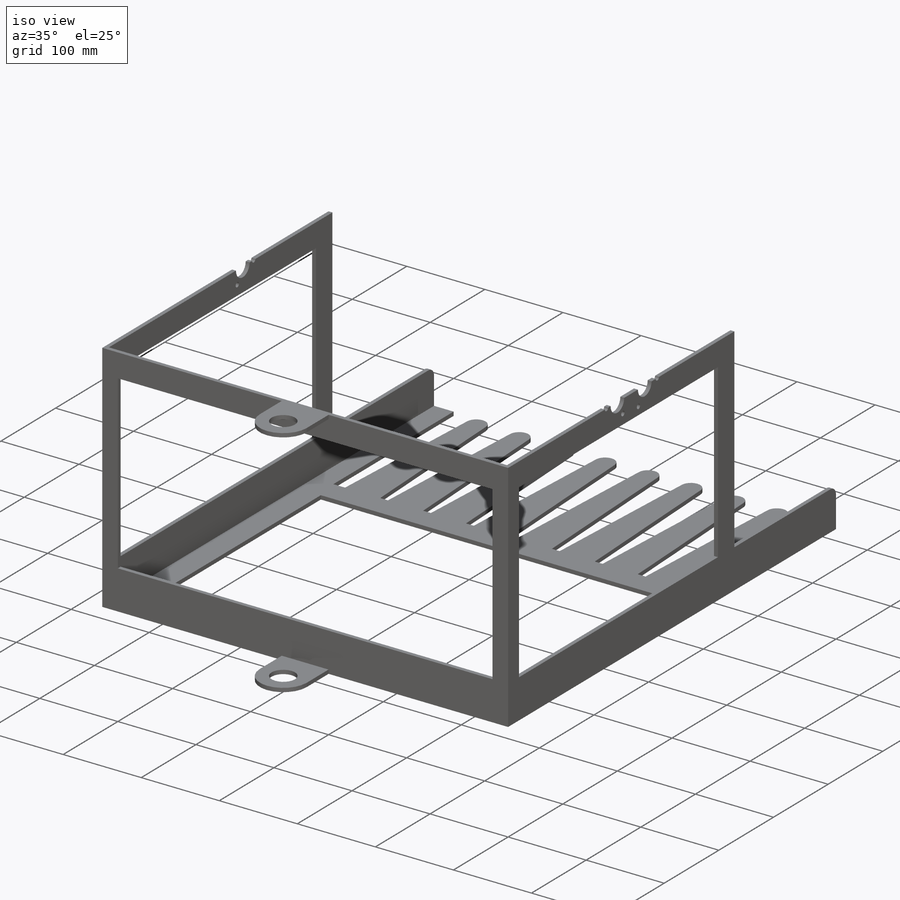
[diagram: iso view]
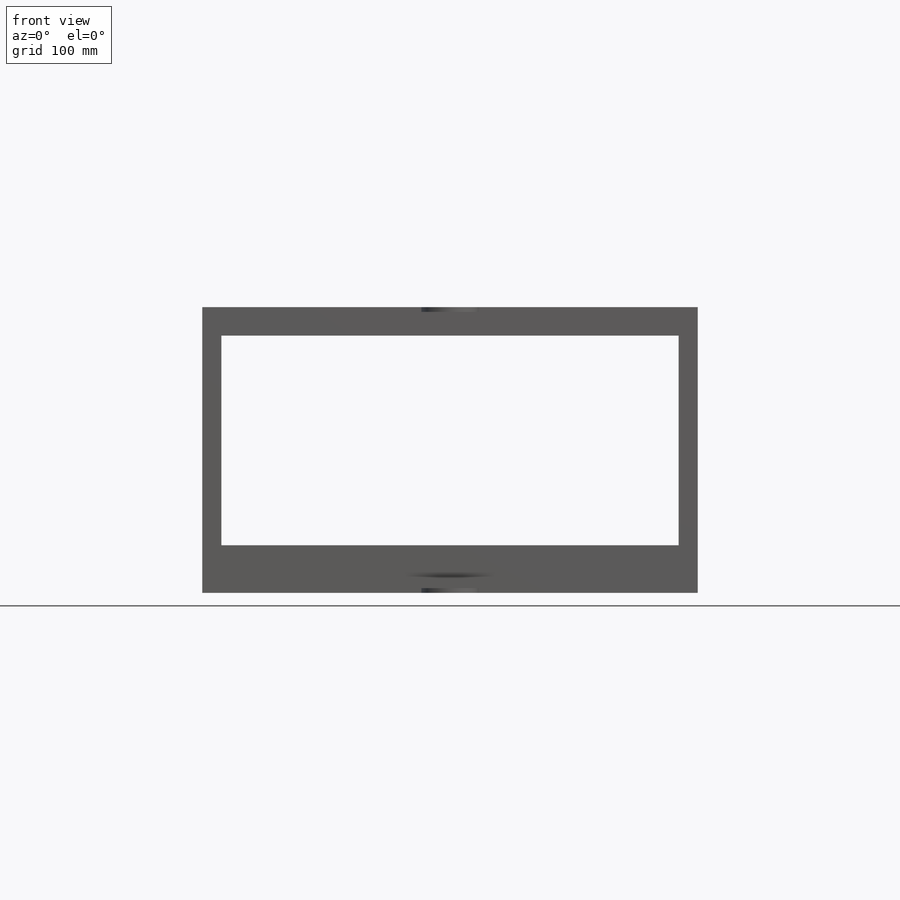
[diagram: front view]
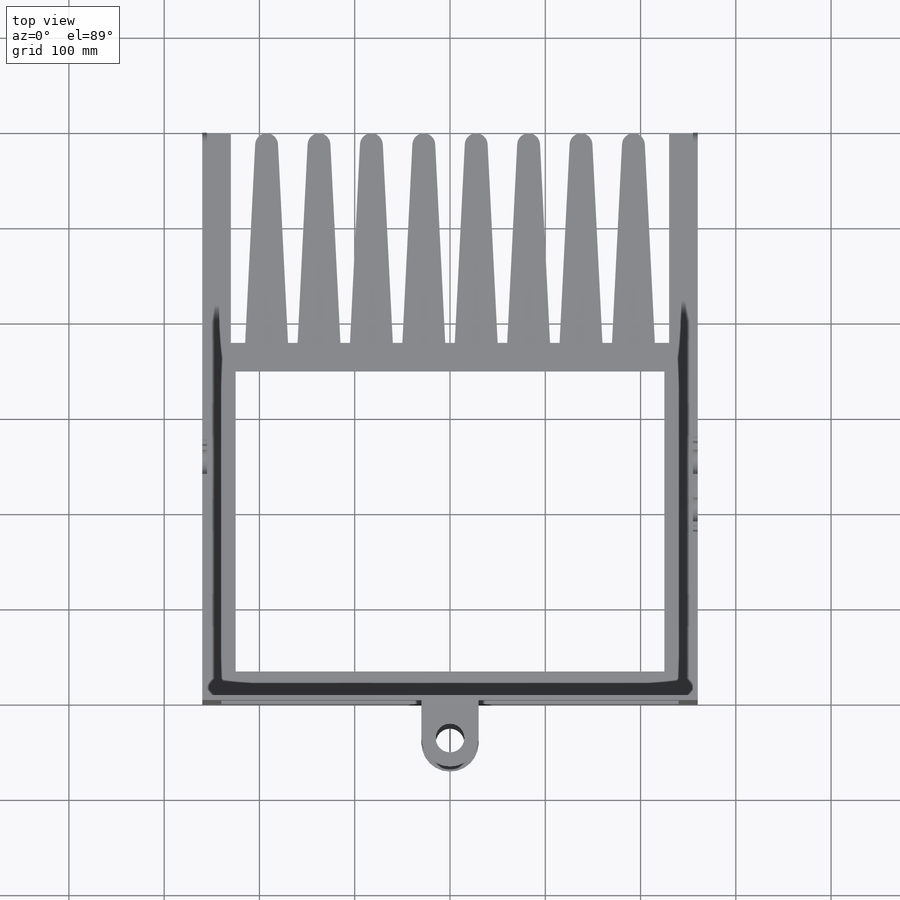
[diagram: top view]
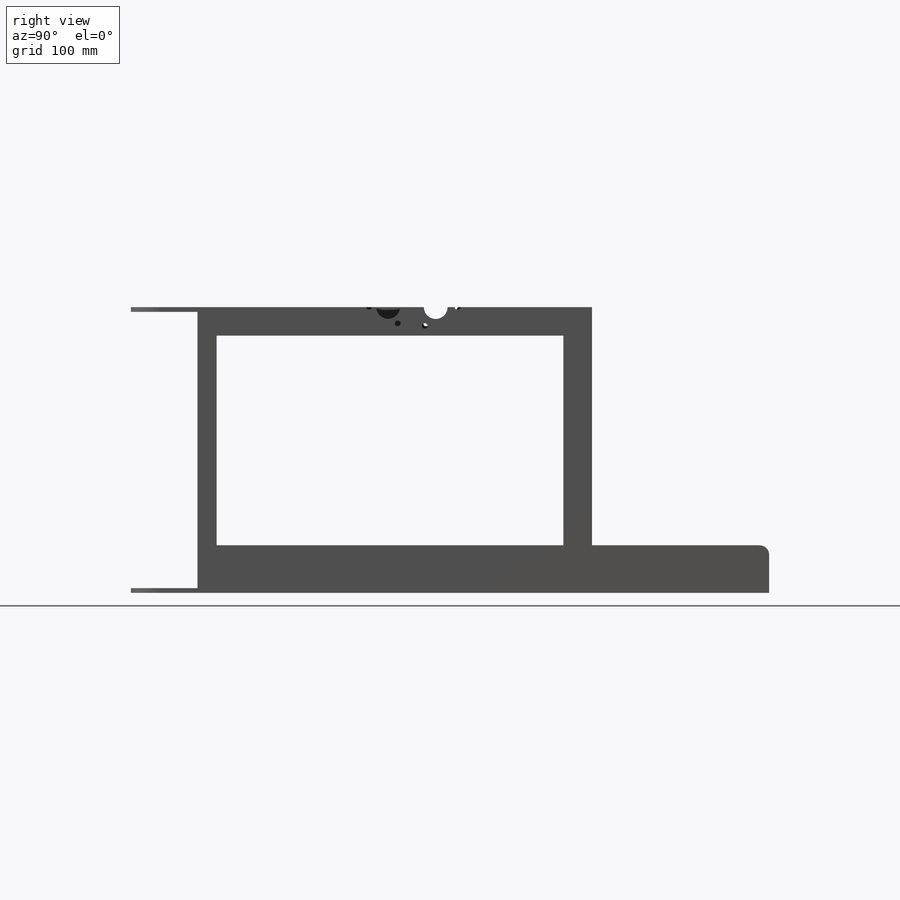
[diagram: right view]
SOLIDWORKS PART (.sldprt)
format: sldprt  version: not decoded by parser v0  size: 749,056 bytes
history: native  units: mm
features: sketch x15, cut_extrude x12, plane x3, extrude x3, material x1, fillet x1 (+9 scaffold rows collapsed)
feature tree (44):
  scaffold x9  (default folders/planes/origin — collapsed)
  material  "普通碳钢"
  plane  "前视基准面"
  plane  "上视基准面"
  plane  "右视基准面"
  sketch  "草图1"  dims[c1.D5=10.0mm c1.D6=10.0mm c1.D7=10.0mm c2.D6=10.0mm c2.D4=10.0mm c2.D5=10.0mm c3.D4=10.0mm c3.D5=10.0mm c3.D7=12.0mm c3.D1=520.0mm c3.D2=640.0mm c3.D3=80.0mm c4.D4=10.0mm c4.D5=240.0mm c5.D5=~94.289153deg c6.D5=18.0mm c7.D5=~94.289153deg c8.D5=18.0mm c9.D5=~94.289153deg c10.D5=18.0mm c10.D7=~224.579045mm c11.D7=~7.271563deg c12.D7=~223.944907mm c12.D6=21.0mm c13.D7=~17.730678mm c13.D6=490.0mm c13.D4=10.0mm c14.D6=~23.679727mm c14.D7=240.0mm c14.D2=600.0mm c14.D4=45.0mm c14.D5=10.0mm c15.D6=30.0mm c15.D7=10.0mm c15.D8=220.0mm c16.D7=~55.117001mm c16.D9=10.0mm c16.D10=30.0mm c16.D11=20.0mm c16.D8=7.0]
  extrude  "凸台-拉伸1"  Depth=300mm
  sketch  "草图2"  dims[c1.D1=522.0mm c1.D2=172.0mm c1.D3=200.0mm c2.D3=90.0deg c3.D3=30.0mm c3.D4=522.0mm c3.D2=10.0mm c3.D1=20.0mm c4.D2=50.0mm]
  cut_extrude  "切除-拉伸1"  [1 undecoded]
  sketch  "草图3"  dims[c1.D1=20.0mm c1.D2=364.0mm c1.D3=178.0mm c1.D4=50.0mm c2.D3=30.0mm]
  cut_extrude  "切除-拉伸2"  [1 undecoded]
  sketch  "草图5"  dims[c1.D1=10.0mm c1.D2=80.0mm c2.D1=10.0mm c2.D2=30.0mm]
  cut_extrude  "切除-拉伸4"  [1 undecoded]
  sketch  "草图6"  dims[c1.D1=522.0mm c1.D2=800.0mm c1.D3=5.0mm c2.D1=5.0mm]
  cut_extrude  "切除-拉伸5"  Depth=5mm
  sketch  "草图4"  dims[c1.D2=25.0mm c1.D3=20.0mm c1.D4=20.0mm c1.D1=250.0mm c2.D4=50.0mm c2.D3=50.0mm]
  cut_extrude  "切除-拉伸3"  [1 undecoded]
  sketch  "草图12"  dims[c1.D1=20.0mm c1.D2=25.0mm c1.D3=25.0mm c2.D1=50.0mm]
  cut_extrude  "切除-拉伸8"  Depth=10mm
  sketch  "草图7"  dims[D1=60.0mm D2=30.0mm D3=40.0mm]
  extrude  "凸台-拉伸2"  [1 undecoded]
  sketch  "草图8"  dims[D1=5.0mm D2=5.0mm]
  cut_extrude  "切除-拉伸6"  [1 undecoded]
  sketch  "草图10"  dims[c1.D1=42.0mm c1.D2=10.0mm c1.D3=36.0mm c2.D2=20.0mm c2.D3=20.0mm c2.D4=20.0mm c2.D5=20.0mm c2.D6=20.0mm c2.D7=20.0mm c2.D8=20.0mm c2.D9=20.0mm c2.D10=20.0mm c2.D11=20.0mm c3.D3=318.0mm c3.D4=10.0mm c3.D5=36.0mm c3.D1=~302.382866mm c3.D2=~441.729809mm c4.D1=30.0mm c4.D2=30.0mm c4.D3=30.0mm c4.D4=30.0mm]
  cut_extrude  "切除-拉伸7"  [1 undecoded]
  fillet  "圆角1"  Radius=10mm
  sketch  "草图13"  dims[D1=12.0mm D2=200.0mm D3=30.0mm]
  cut_extrude  "切除-拉伸9"  [1 undecoded]
  sketch  "草图14"  dims[c1.D2=~20.859322mm c1.D3=15.0mm c1.D4=10.0mm c1.D1=100.0mm c2.D2=20.0mm c2.D3=40.0mm c2.D5=30.0mm]
  extrude  "凸台-拉伸3"  Depth=5mm
  sketch  "草图15"  dims[D1=6.0mm D2=40.0mm D3=3.0]
  cut_extrude  "切除-拉伸10"  [1 undecoded]
  sketch  "草图16"  dims[D1=40.0mm D2=6.0mm D3=3.0]
  cut_extrude  "切除-拉伸11"  [1 undecoded]
  sketch  "草图17"  dims[D1=46.0mm D2=6.0mm D3=3.0]
  cut_extrude  "切除-拉伸12"  [1 undecoded]
decode coverage: 20 of 31 modeling features carry decoded parameters
note: ~ marks probable driven/reference dimensions
note: 11 parameter values undecoded
summary: no parameter record found for 11 features
note: suppression state not decoded; provenance and decode notes live in map.json
